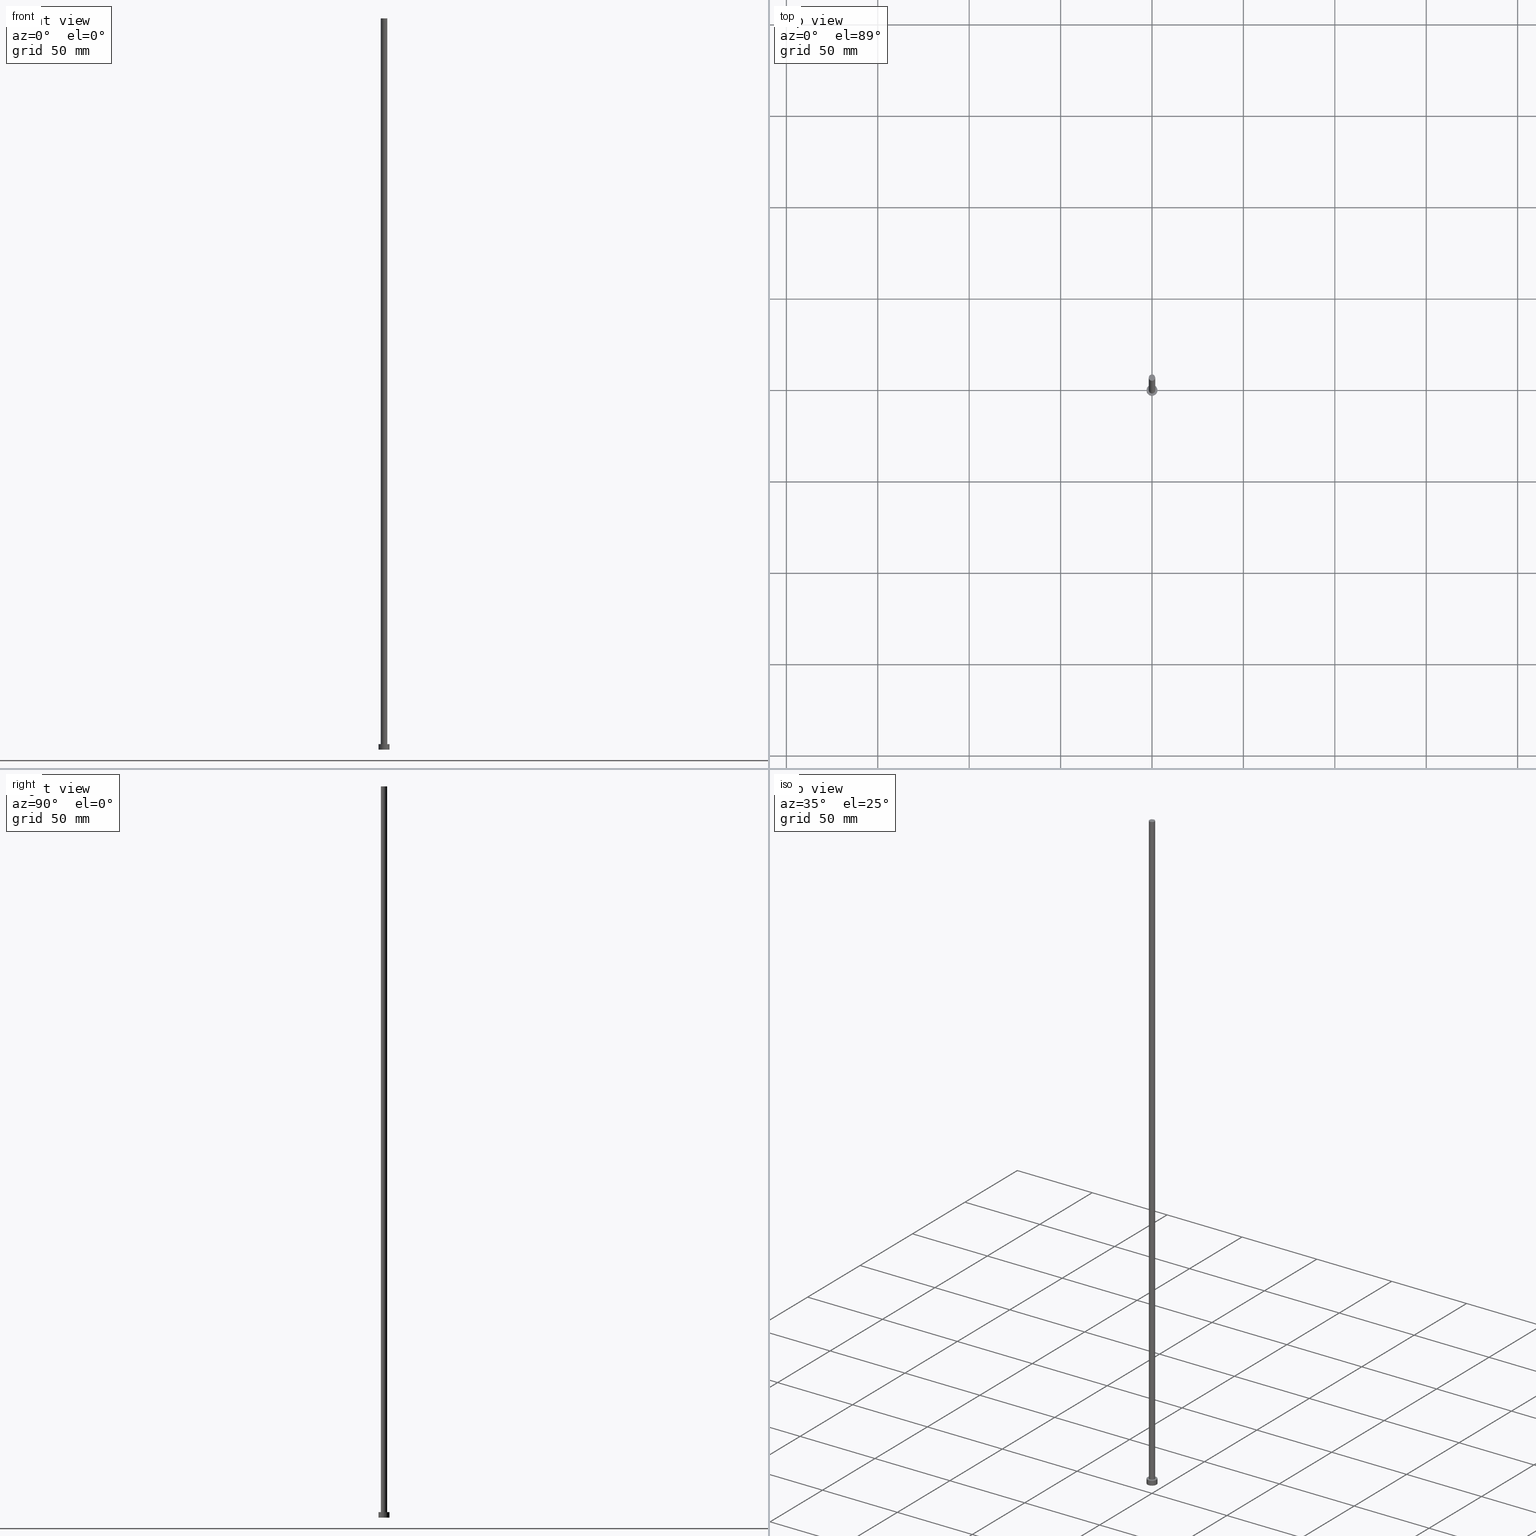
[diagram: canonical four-view strip — front | top / right | iso, engineering-drawing reading convention]
A machine part, canonical four-view strip (front | top / right | iso — engineering-drawing reading convention). The complete STEP part file that produces these views, byte-faithful:
ISO-10303-21;
HEADER;
FILE_DESCRIPTION (( 'STEP AP203' ),
    '1' );
FILE_NAME ('ad4e.STEP',
    '2023-02-13T16:50:11',
    ( '' ),
    ( '' ),
    'SwSTEP 2.0',
    'SolidWorks 2019',
    '' );
FILE_SCHEMA (( 'CONFIG_CONTROL_DESIGN' ));
ENDSEC;

DATA;
#1 = PERSON_AND_ORGANIZATION ( #106, #223 ) ;
#2 = AXIS2_PLACEMENT_3D ( 'NONE', #244, #89, #171 ) ;
#3 = CALENDAR_DATE ( 2023, 13, 2 ) ;
#4 = VERTEX_POINT ( 'NONE', #240 ) ;
#5 = CC_DESIGN_APPROVAL ( #59, ( #64 ) ) ;
#6 = EDGE_LOOP ( 'NONE', ( #22, #66 ) ) ;
#7 = ADVANCED_FACE ( 'NONE', ( #205, #30 ), #71, .T. ) ;
#8 = DIRECTION ( 'NONE',  ( 1.000000000000000000, 0.000000000000000000, 0.000000000000000000 ) ) ;
#9 = VECTOR ( 'NONE', #169, 1000.000000000000000 ) ;
#10 = DIRECTION ( 'NONE',  ( -1.000000000000000000, 0.000000000000000000, 0.000000000000000000 ) ) ;
#11 = ORIENTED_EDGE ( 'NONE', *, *, #125, .T. ) ;
#12 = EDGE_LOOP ( 'NONE', ( #105, #28 ) ) ;
#13 = DIRECTION ( 'NONE',  ( 1.000000000000000000, 0.000000000000000000, 0.000000000000000000 ) ) ;
#14 = DIRECTION ( 'NONE',  ( 0.000000000000000000, 0.000000000000000000, 1.000000000000000000 ) ) ;
#15 = LOCAL_TIME ( 17, 50, 11.00000000000000000, #162 ) ;
#16 = MECHANICAL_CONTEXT ( 'NONE', #32, 'mechanical' ) ;
#17 = DIRECTION ( 'NONE',  ( -1.000000000000000000, 0.000000000000000000, 0.000000000000000000 ) ) ;
#18 = DIRECTION ( 'NONE',  ( 1.000000000000000000, 0.000000000000000000, -0.000000000000000000 ) ) ;
#19 = PRODUCT_RELATED_PRODUCT_CATEGORY ( 'detail', '', ( #29 ) ) ;
#20 =( GEOMETRIC_REPRESENTATION_CONTEXT ( 3 ) GLOBAL_UNCERTAINTY_ASSIGNED_CONTEXT ( ( #82 ) ) GLOBAL_UNIT_ASSIGNED_CONTEXT ( ( #77, #196, #138 ) ) REPRESENTATION_CONTEXT ( 'NONE', 'WORKASPACE' ) );
#21 = COORDINATED_UNIVERSAL_TIME_OFFSET ( 1, 0, .AHEAD. ) ;
#22 = ORIENTED_EDGE ( 'NONE', *, *, #84, .F. ) ;
#23 = EDGE_CURVE ( 'NONE', #160, #68, #67, .T. ) ;
#24 = PERSON_AND_ORGANIZATION ( #106, #223 ) ;
#25 = PERSON_AND_ORGANIZATION_ROLE ( 'classification_officer' ) ;
#26 = CC_DESIGN_DATE_AND_TIME_ASSIGNMENT ( #220, #144, ( #218 ) ) ;
#27 = CIRCLE ( 'NONE', #152, 1.750000000000000000 ) ;
#28 = ORIENTED_EDGE ( 'NONE', *, *, #99, .F. ) ;
#29 = PRODUCT ( 'ad4e', 'ad4e', '', ( #16 ) ) ;
#30 = FACE_OUTER_BOUND ( 'NONE', #226, .T. ) ;
#31 = EDGE_LOOP ( 'NONE', ( #219, #128, #202, #86 ) ) ;
#32 = APPLICATION_CONTEXT ( 'configuration controlled 3d designs of mechanical parts and assemblies' ) ;
#33 = VERTEX_POINT ( 'NONE', #146 ) ;
#34 = DIRECTION ( 'NONE',  ( 1.000000000000000000, 0.000000000000000000, -0.000000000000000000 ) ) ;
#35 = PERSON_AND_ORGANIZATION ( #106, #223 ) ;
#36 = VECTOR ( 'NONE', #175, 1000.000000000000000 ) ;
#37 = CARTESIAN_POINT ( 'NONE',  ( 0.000000000000000000, 0.000000000000000000, 0.000000000000000000 ) ) ;
#38 = LINE ( 'NONE', #101, #36 ) ;
#39 = CC_DESIGN_PERSON_AND_ORGANIZATION_ASSIGNMENT ( #1, #140, ( #209 ) ) ;
#40 = CARTESIAN_POINT ( 'NONE',  ( 0.000000000000000000, 0.000000000000000000, 400.0000000000000000 ) ) ;
#41 = AXIS2_PLACEMENT_3D ( 'NONE', #129, #208, #116 ) ;
#42 = LOCAL_TIME ( 17, 50, 11.00000000000000000, #255 ) ;
#43 = APPLICATION_PROTOCOL_DEFINITION ( 'international standard', 'config_control_design', 1994, #126 ) ;
#44 = APPROVAL_ROLE ( '' ) ;
#45 = EDGE_CURVE ( 'NONE', #68, #50, #113, .T. ) ;
#46 = APPROVAL_STATUS ( 'not_yet_approved' ) ;
#47 = ADVANCED_FACE ( 'NONE', ( #188 ), #149, .T. ) ;
#48 = SHAPE_DEFINITION_REPRESENTATION ( #245, #194 ) ;
#49 = VERTEX_POINT ( 'NONE', #192 ) ;
#50 = VERTEX_POINT ( 'NONE', #93 ) ;
#51 = CARTESIAN_POINT ( 'NONE',  ( 3.000000000000000444, 3.673940397442060361E-16, 3.000000000000000000 ) ) ;
#52 = CARTESIAN_POINT ( 'NONE',  ( 0.000000000000000000, 0.000000000000000000, 0.000000000000000000 ) ) ;
#53 = CIRCLE ( 'NONE', #173, 1.750000000000000000 ) ;
#54 = AXIS2_PLACEMENT_3D ( 'NONE', #134, #250, #213 ) ;
#55 = CIRCLE ( 'NONE', #161, 3.000000000000000444 ) ;
#56 = DIRECTION ( 'NONE',  ( -1.000000000000000000, 0.000000000000000000, 0.000000000000000000 ) ) ;
#57 = DIRECTION ( 'NONE',  ( 0.000000000000000000, 0.000000000000000000, 1.000000000000000000 ) ) ;
#58 = DIRECTION ( 'NONE',  ( 0.000000000000000000, 0.000000000000000000, 1.000000000000000000 ) ) ;
#59 = APPROVAL ( #239, 'NEUR�EN�' ) ;
#60 = FACE_OUTER_BOUND ( 'NONE', #31, .T. ) ;
#61 = CARTESIAN_POINT ( 'NONE',  ( 1.750000000000000000, 2.143131898507868297E-16, 3.000000000000000000 ) ) ;
#62 = DATE_AND_TIME ( #164, #184 ) ;
#63 = APPROVAL_DATE_TIME ( #179, #222 ) ;
#64 = PRODUCT_DEFINITION ( 'NEZN�M�', '', #209, #88 ) ;
#65 = DATE_TIME_ROLE ( 'creation_date' ) ;
#66 = ORIENTED_EDGE ( 'NONE', *, *, #125, .F. ) ;
#67 = CIRCLE ( 'NONE', #2, 3.000000000000000444 ) ;
#68 = VERTEX_POINT ( 'NONE', #51 ) ;
#69 = EDGE_CURVE ( 'NONE', #160, #49, #73, .T. ) ;
#70 = CALENDAR_DATE ( 2023, 13, 2 ) ;
#71 = PLANE ( 'NONE',  #176 ) ;
#72 = DIRECTION ( 'NONE',  ( -0.000000000000000000, -0.000000000000000000, -1.000000000000000000 ) ) ;
#73 = LINE ( 'NONE', #151, #9 ) ;
#74 = EDGE_LOOP ( 'NONE', ( #94, #190, #163, #167 ) ) ;
#75 = CARTESIAN_POINT ( 'NONE',  ( 3.000000000000000444, 3.673940397442060361E-16, 3.000000000000000000 ) ) ;
#76 = CARTESIAN_POINT ( 'NONE',  ( 0.000000000000000000, 0.000000000000000000, 400.0000000000000000 ) ) ;
#77 =( LENGTH_UNIT ( ) NAMED_UNIT ( * ) SI_UNIT ( .MILLI., .METRE. ) );
#78 = CARTESIAN_POINT ( 'NONE',  ( 0.000000000000000000, 0.000000000000000000, 400.0000000000000000 ) ) ;
#79 = DIRECTION ( 'NONE',  ( 0.000000000000000000, 0.000000000000000000, 1.000000000000000000 ) ) ;
#80 = ADVANCED_FACE ( 'NONE', ( #231 ), #148, .T. ) ;
#81 = CALENDAR_DATE ( 2023, 13, 2 ) ;
#82 = UNCERTAINTY_MEASURE_WITH_UNIT (LENGTH_MEASURE( 1.000000000000000082E-05 ), #77, 'distance_accuracy_value', 'NONE');
#83 = ORIENTED_EDGE ( 'NONE', *, *, #199, .T. ) ;
#84 = EDGE_CURVE ( 'NONE', #33, #187, #150, .T. ) ;
#85 = AXIS2_PLACEMENT_3D ( 'NONE', #147, #227, #56 ) ;
#86 = ORIENTED_EDGE ( 'NONE', *, *, #84, .T. ) ;
#87 = APPROVAL_PERSON_ORGANIZATION ( #224, #59, #253 ) ;
#88 = DESIGN_CONTEXT ( 'detailed design', #126, 'design' ) ;
#89 = DIRECTION ( 'NONE',  ( 0.000000000000000000, 0.000000000000000000, 1.000000000000000000 ) ) ;
#90 = FACE_OUTER_BOUND ( 'NONE', #12, .T. ) ;
#91 = VECTOR ( 'NONE', #242, 1000.000000000000000 ) ;
#92 = ADVANCED_FACE ( 'NONE', ( #90 ), #241, .F. ) ;
#93 = CARTESIAN_POINT ( 'NONE',  ( 3.000000000000000444, 3.673940397442060361E-16, 0.000000000000000000 ) ) ;
#94 = ORIENTED_EDGE ( 'NONE', *, *, #130, .F. ) ;
#95 = EDGE_LOOP ( 'NONE', ( #186, #181, #170, #172 ) ) ;
#96 = CARTESIAN_POINT ( 'NONE',  ( 1.750000000000000000, 2.143131898507868297E-16, 400.0000000000000000 ) ) ;
#97 = CYLINDRICAL_SURFACE ( 'NONE', #185, 1.750000000000000000 ) ;
#98 = CARTESIAN_POINT ( 'NONE',  ( 0.000000000000000000, 0.000000000000000000, 3.000000000000000000 ) ) ;
#99 = EDGE_CURVE ( 'NONE', #50, #49, #229, .T. ) ;
#100 = AXIS2_PLACEMENT_3D ( 'NONE', #40, #57, #18 ) ;
#101 = CARTESIAN_POINT ( 'NONE',  ( -1.750000000000000000, 0.000000000000000000, 400.0000000000000000 ) ) ;
#102 = PERSON_AND_ORGANIZATION ( #106, #223 ) ;
#103 = CALENDAR_DATE ( 2023, 13, 2 ) ;
#104 = CLOSED_SHELL ( 'NONE', ( #234, #80, #47, #7, #92, #230, #111 ) ) ;
#105 = ORIENTED_EDGE ( 'NONE', *, *, #174, .F. ) ;
#106 = PERSON ( 'NEUR�EN�', 'NEUR�EN�', 'NEUR�EN�', ('NEUR�EN�'), ('NEUR�EN�'), ('NEUR�EN�') ) ;
#107 = CC_DESIGN_PERSON_AND_ORGANIZATION_ASSIGNMENT ( #109, #25, ( #218 ) ) ;
#108 = APPROVAL_DATE_TIME ( #182, #59 ) ;
#109 = PERSON_AND_ORGANIZATION ( #106, #223 ) ;
#110 = CARTESIAN_POINT ( 'NONE',  ( 0.000000000000000000, 0.000000000000000000, 3.000000000000000000 ) ) ;
#111 = ADVANCED_FACE ( 'NONE', ( #158 ), #215, .T. ) ;
#112 = DIRECTION ( 'NONE',  ( 0.000000000000000000, 0.000000000000000000, 1.000000000000000000 ) ) ;
#113 = LINE ( 'NONE', #75, #91 ) ;
#114 = AXIS2_PLACEMENT_3D ( 'NONE', #78, #246, #233 ) ;
#115 = DIRECTION ( 'NONE',  ( 0.000000000000000000, 0.000000000000000000, 1.000000000000000000 ) ) ;
#116 = DIRECTION ( 'NONE',  ( 1.000000000000000000, 0.000000000000000000, 0.000000000000000000 ) ) ;
#117 = CARTESIAN_POINT ( 'NONE',  ( -3.000000000000000444, 0.000000000000000000, 3.000000000000000000 ) ) ;
#118 = DIRECTION ( 'NONE',  ( -0.000000000000000000, -0.000000000000000000, -1.000000000000000000 ) ) ;
#119 = DIRECTION ( 'NONE',  ( -0.000000000000000000, -0.000000000000000000, -1.000000000000000000 ) ) ;
#120 = DIRECTION ( 'NONE',  ( -1.000000000000000000, 0.000000000000000000, 0.000000000000000000 ) ) ;
#121 = LOCAL_TIME ( 17, 50, 11.00000000000000000, #141 ) ;
#122 = PERSON_AND_ORGANIZATION_ROLE ( 'design_owner' ) ;
#123 = COORDINATED_UNIVERSAL_TIME_OFFSET ( 1, 0, .AHEAD. ) ;
#124 = DATE_AND_TIME ( #81, #42 ) ;
#125 = EDGE_CURVE ( 'NONE', #187, #33, #53, .T. ) ;
#126 = APPLICATION_CONTEXT ( 'configuration controlled 3d designs of mechanical parts and assemblies' ) ;
#127 = ORIENTED_EDGE ( 'NONE', *, *, #236, .F. ) ;
#128 = ORIENTED_EDGE ( 'NONE', *, *, #210, .F. ) ;
#129 = CARTESIAN_POINT ( 'NONE',  ( 0.000000000000000000, 0.000000000000000000, 0.000000000000000000 ) ) ;
#130 = EDGE_CURVE ( 'NONE', #68, #160, #55, .T. ) ;
#131 = DIRECTION ( 'NONE',  ( 1.000000000000000000, 0.000000000000000000, -0.000000000000000000 ) ) ;
#132 = DIRECTION ( 'NONE',  ( 0.000000000000000000, 0.000000000000000000, 1.000000000000000000 ) ) ;
#133 = CARTESIAN_POINT ( 'NONE',  ( 1.750000000000000000, 2.143131898507868297E-16, 400.0000000000000000 ) ) ;
#134 = CARTESIAN_POINT ( 'NONE',  ( 0.000000000000000000, 0.000000000000000000, 0.000000000000000000 ) ) ;
#135 = CC_DESIGN_PERSON_AND_ORGANIZATION_ASSIGNMENT ( #35, #122, ( #29 ) ) ;
#136 = CIRCLE ( 'NONE', #114, 1.750000000000000000 ) ;
#137 = CARTESIAN_POINT ( 'NONE',  ( 0.000000000000000000, 0.000000000000000000, 3.000000000000000000 ) ) ;
#138 =( NAMED_UNIT ( * ) SI_UNIT ( $, .STERADIAN. ) SOLID_ANGLE_UNIT ( ) );
#139 = AXIS2_PLACEMENT_3D ( 'NONE', #37, #248, #154 ) ;
#140 = PERSON_AND_ORGANIZATION_ROLE ( 'creator' ) ;
#141 = COORDINATED_UNIVERSAL_TIME_OFFSET ( 1, 0, .AHEAD. ) ;
#142 = AXIS2_PLACEMENT_3D ( 'NONE', #110, #115, #8 ) ;
#143 = ORIENTED_EDGE ( 'NONE', *, *, #236, .T. ) ;
#144 = DATE_TIME_ROLE ( 'classification_date' ) ;
#145 = CC_DESIGN_DATE_AND_TIME_ASSIGNMENT ( #124, #65, ( #64 ) ) ;
#146 = CARTESIAN_POINT ( 'NONE',  ( -1.750000000000000000, 0.000000000000000000, 3.000000000000000000 ) ) ;
#147 = CARTESIAN_POINT ( 'NONE',  ( 0.000000000000000000, 0.000000000000000000, 3.000000000000000000 ) ) ;
#148 = CYLINDRICAL_SURFACE ( 'NONE', #85, 3.000000000000000444 ) ;
#149 = CYLINDRICAL_SURFACE ( 'NONE', #207, 3.000000000000000444 ) ;
#150 = CIRCLE ( 'NONE', #142, 1.750000000000000000 ) ;
#151 = CARTESIAN_POINT ( 'NONE',  ( -3.000000000000000444, 0.000000000000000000, 3.000000000000000000 ) ) ;
#152 = AXIS2_PLACEMENT_3D ( 'NONE', #235, #14, #13 ) ;
#153 = DIRECTION ( 'NONE',  ( -0.000000000000000000, -0.000000000000000000, -1.000000000000000000 ) ) ;
#154 = DIRECTION ( 'NONE',  ( 1.000000000000000000, 0.000000000000000000, 0.000000000000000000 ) ) ;
#155 = CYLINDRICAL_SURFACE ( 'NONE', #214, 1.750000000000000000 ) ;
#156 = CIRCLE ( 'NONE', #139, 3.000000000000000444 ) ;
#157 = CC_DESIGN_APPROVAL ( #222, ( #209 ) ) ;
#158 = FACE_OUTER_BOUND ( 'NONE', #225, .T. ) ;
#159 = CC_DESIGN_SECURITY_CLASSIFICATION ( #218, ( #209 ) ) ;
#160 = VERTEX_POINT ( 'NONE', #117 ) ;
#161 = AXIS2_PLACEMENT_3D ( 'NONE', #98, #79, #195 ) ;
#162 = COORDINATED_UNIVERSAL_TIME_OFFSET ( 1, 0, .AHEAD. ) ;
#163 = ORIENTED_EDGE ( 'NONE', *, *, #99, .T. ) ;
#164 = CALENDAR_DATE ( 2023, 13, 2 ) ;
#165 = APPROVAL_STATUS ( 'not_yet_approved' ) ;
#166 = VERTEX_POINT ( 'NONE', #96 ) ;
#167 = ORIENTED_EDGE ( 'NONE', *, *, #69, .F. ) ;
#168 = MANIFOLD_SOLID_BREP ( 'P�idat vysunut�m3', #104 ) ;
#169 = DIRECTION ( 'NONE',  ( -0.000000000000000000, -0.000000000000000000, -1.000000000000000000 ) ) ;
#170 = ORIENTED_EDGE ( 'NONE', *, *, #69, .T. ) ;
#171 = DIRECTION ( 'NONE',  ( 1.000000000000000000, 0.000000000000000000, 0.000000000000000000 ) ) ;
#172 = ORIENTED_EDGE ( 'NONE', *, *, #174, .T. ) ;
#173 = AXIS2_PLACEMENT_3D ( 'NONE', #137, #58, #177 ) ;
#174 = EDGE_CURVE ( 'NONE', #49, #50, #156, .T. ) ;
#175 = DIRECTION ( 'NONE',  ( -0.000000000000000000, -0.000000000000000000, -1.000000000000000000 ) ) ;
#176 = AXIS2_PLACEMENT_3D ( 'NONE', #243, #112, #131 ) ;
#177 = DIRECTION ( 'NONE',  ( 1.000000000000000000, 0.000000000000000000, 0.000000000000000000 ) ) ;
#178 = FACE_OUTER_BOUND ( 'NONE', #191, .T. ) ;
#179 = DATE_AND_TIME ( #70, #15 ) ;
#180 = SECURITY_CLASSIFICATION_LEVEL ( 'unclassified' ) ;
#181 = ORIENTED_EDGE ( 'NONE', *, *, #23, .F. ) ;
#182 = DATE_AND_TIME ( #3, #121 ) ;
#183 = ORIENTED_EDGE ( 'NONE', *, *, #130, .T. ) ;
#184 = LOCAL_TIME ( 17, 50, 11.00000000000000000, #123 ) ;
#185 = AXIS2_PLACEMENT_3D ( 'NONE', #76, #118, #17 ) ;
#186 = ORIENTED_EDGE ( 'NONE', *, *, #45, .F. ) ;
#187 = VERTEX_POINT ( 'NONE', #61 ) ;
#188 = FACE_OUTER_BOUND ( 'NONE', #95, .T. ) ;
#189 = CC_DESIGN_PERSON_AND_ORGANIZATION_ASSIGNMENT ( #237, #221, ( #64 ) ) ;
#190 = ORIENTED_EDGE ( 'NONE', *, *, #45, .T. ) ;
#191 = EDGE_LOOP ( 'NONE', ( #127, #83, #11, #204 ) ) ;
#192 = CARTESIAN_POINT ( 'NONE',  ( -3.000000000000000444, 0.000000000000000000, 0.000000000000000000 ) ) ;
#193 = EDGE_CURVE ( 'NONE', #4, #33, #38, .T. ) ;
#194 = ADVANCED_BREP_SHAPE_REPRESENTATION ( 'ad4e', ( #168, #54 ), #20 ) ;
#195 = DIRECTION ( 'NONE',  ( 1.000000000000000000, 0.000000000000000000, 0.000000000000000000 ) ) ;
#196 =( NAMED_UNIT ( * ) PLANE_ANGLE_UNIT ( ) SI_UNIT ( $, .RADIAN. ) );
#197 = APPLICATION_PROTOCOL_DEFINITION ( 'international standard', 'config_control_design', 1994, #32 ) ;
#198 = PERSON_AND_ORGANIZATION_ROLE ( 'design_supplier' ) ;
#199 = EDGE_CURVE ( 'NONE', #166, #187, #212, .T. ) ;
#200 = APPROVAL_DATE_TIME ( #62, #252 ) ;
#201 = CC_DESIGN_APPROVAL ( #252, ( #218 ) ) ;
#202 = ORIENTED_EDGE ( 'NONE', *, *, #193, .T. ) ;
#203 = APPROVAL_PERSON_ORGANIZATION ( #102, #252, #44 ) ;
#204 = ORIENTED_EDGE ( 'NONE', *, *, #193, .F. ) ;
#205 = FACE_BOUND ( 'NONE', #6, .T. ) ;
#206 = ORIENTED_EDGE ( 'NONE', *, *, #210, .T. ) ;
#207 = AXIS2_PLACEMENT_3D ( 'NONE', #228, #72, #10 ) ;
#208 = DIRECTION ( 'NONE',  ( 0.000000000000000000, 0.000000000000000000, 1.000000000000000000 ) ) ;
#209 = PRODUCT_DEFINITION_FORMATION_WITH_SPECIFIED_SOURCE ( 'LIBOVOLN�', '', #29, .NOT_KNOWN. ) ;
#210 = EDGE_CURVE ( 'NONE', #4, #166, #27, .T. ) ;
#211 = ORIENTED_EDGE ( 'NONE', *, *, #23, .T. ) ;
#212 = LINE ( 'NONE', #133, #251 ) ;
#213 = DIRECTION ( 'NONE',  ( 1.000000000000000000, 0.000000000000000000, 0.000000000000000000 ) ) ;
#214 = AXIS2_PLACEMENT_3D ( 'NONE', #217, #119, #120 ) ;
#215 = PLANE ( 'NONE',  #100 ) ;
#216 = AXIS2_PLACEMENT_3D ( 'NONE', #52, #132, #34 ) ;
#217 = CARTESIAN_POINT ( 'NONE',  ( 0.000000000000000000, 0.000000000000000000, 400.0000000000000000 ) ) ;
#218 = SECURITY_CLASSIFICATION ( '', '', #180 ) ;
#219 = ORIENTED_EDGE ( 'NONE', *, *, #199, .F. ) ;
#220 = DATE_AND_TIME ( #103, #247 ) ;
#221 = PERSON_AND_ORGANIZATION_ROLE ( 'creator' ) ;
#222 = APPROVAL ( #165, 'NEUR�EN�' ) ;
#223 = ORGANIZATION ( 'NEUR�EN�', 'NEUR�EN�', '' ) ;
#224 = PERSON_AND_ORGANIZATION ( #106, #223 ) ;
#225 = EDGE_LOOP ( 'NONE', ( #206, #143 ) ) ;
#226 = EDGE_LOOP ( 'NONE', ( #211, #183 ) ) ;
#227 = DIRECTION ( 'NONE',  ( -0.000000000000000000, -0.000000000000000000, -1.000000000000000000 ) ) ;
#228 = CARTESIAN_POINT ( 'NONE',  ( 0.000000000000000000, 0.000000000000000000, 3.000000000000000000 ) ) ;
#229 = CIRCLE ( 'NONE', #41, 3.000000000000000444 ) ;
#230 = ADVANCED_FACE ( 'NONE', ( #60 ), #97, .T. ) ;
#231 = FACE_OUTER_BOUND ( 'NONE', #74, .T. ) ;
#232 = APPROVAL_PERSON_ORGANIZATION ( #24, #222, #238 ) ;
#233 = DIRECTION ( 'NONE',  ( 1.000000000000000000, 0.000000000000000000, 0.000000000000000000 ) ) ;
#234 = ADVANCED_FACE ( 'NONE', ( #178 ), #155, .T. ) ;
#235 = CARTESIAN_POINT ( 'NONE',  ( 0.000000000000000000, 0.000000000000000000, 400.0000000000000000 ) ) ;
#236 = EDGE_CURVE ( 'NONE', #166, #4, #136, .T. ) ;
#237 = PERSON_AND_ORGANIZATION ( #106, #223 ) ;
#238 = APPROVAL_ROLE ( '' ) ;
#239 = APPROVAL_STATUS ( 'not_yet_approved' ) ;
#240 = CARTESIAN_POINT ( 'NONE',  ( -1.750000000000000000, 0.000000000000000000, 400.0000000000000000 ) ) ;
#241 = PLANE ( 'NONE',  #216 ) ;
#242 = DIRECTION ( 'NONE',  ( -0.000000000000000000, -0.000000000000000000, -1.000000000000000000 ) ) ;
#243 = CARTESIAN_POINT ( 'NONE',  ( 0.000000000000000000, 0.000000000000000000, 3.000000000000000000 ) ) ;
#244 = CARTESIAN_POINT ( 'NONE',  ( 0.000000000000000000, 0.000000000000000000, 3.000000000000000000 ) ) ;
#245 = PRODUCT_DEFINITION_SHAPE ( 'NONE', 'NONE',  #64 ) ;
#246 = DIRECTION ( 'NONE',  ( 0.000000000000000000, 0.000000000000000000, 1.000000000000000000 ) ) ;
#247 = LOCAL_TIME ( 17, 50, 11.00000000000000000, #21 ) ;
#248 = DIRECTION ( 'NONE',  ( 0.000000000000000000, 0.000000000000000000, 1.000000000000000000 ) ) ;
#249 = CC_DESIGN_PERSON_AND_ORGANIZATION_ASSIGNMENT ( #254, #198, ( #209 ) ) ;
#250 = DIRECTION ( 'NONE',  ( 0.000000000000000000, 0.000000000000000000, 1.000000000000000000 ) ) ;
#251 = VECTOR ( 'NONE', #153, 1000.000000000000000 ) ;
#252 = APPROVAL ( #46, 'NEUR�EN�' ) ;
#253 = APPROVAL_ROLE ( '' ) ;
#254 = PERSON_AND_ORGANIZATION ( #106, #223 ) ;
#255 = COORDINATED_UNIVERSAL_TIME_OFFSET ( 1, 0, .AHEAD. ) ;
ENDSEC;
END-ISO-10303-21;
